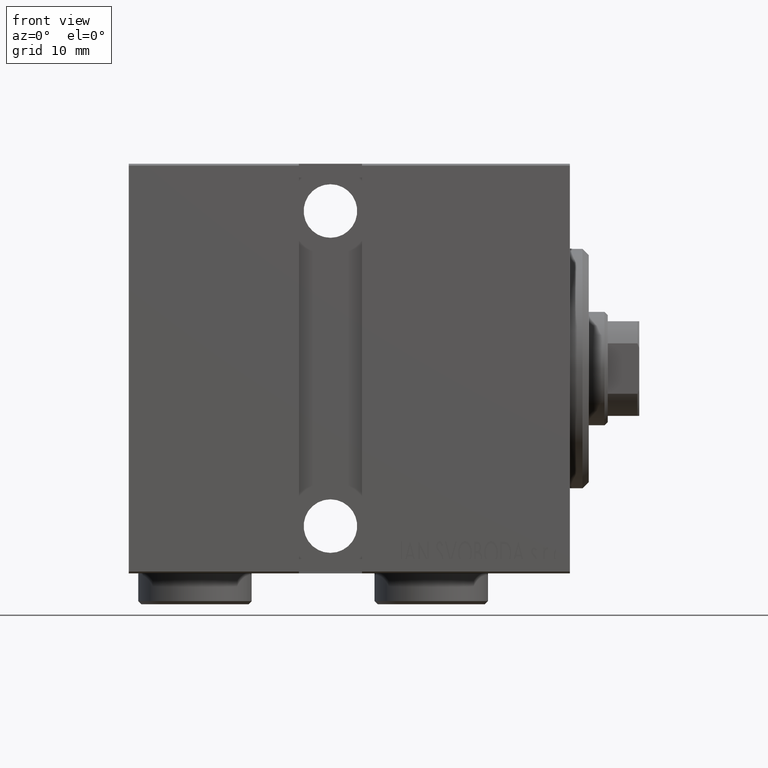
[diagram: clean part render]
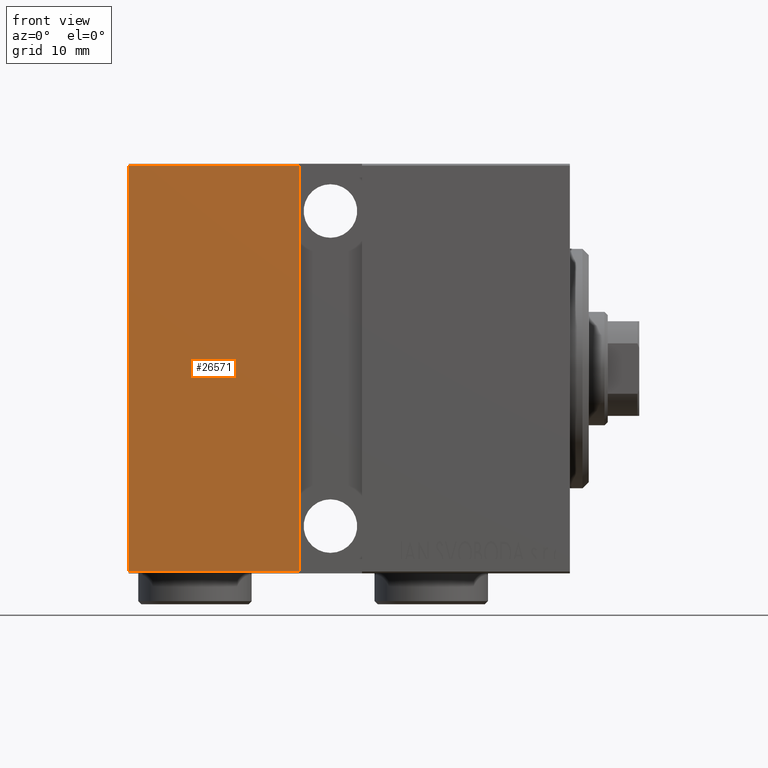
[diagram: same view with one face highlighted and labeled with its STEP entity id]
A machine part, front view. The second image highlights one B-rep face of the part: STEP entity #26571.
In plain terms, the highlighted planar face has unit normal (-0, 1, -0).
Its self-contained STEP definition (entity closure, byte-faithful):
#1645 = EDGE_CURVE ( 'NONE', #2854, #26504, #32120, .T. ) ;
#2854 = VERTEX_POINT ( 'NONE', #39647 ) ;
#3146 = VECTOR ( 'NONE', #38144, 1000.000000000000000 ) ;
#5353 = FACE_OUTER_BOUND ( 'NONE', #8824, .T. ) ;
#8410 = CARTESIAN_POINT ( 'NONE',  ( 70.00000000000000000, 22.50000000000000355, -32.19999999999999574 ) ) ;
#8824 = EDGE_LOOP ( 'NONE', ( #31518, #26163, #15474, #18552 ) ) ;
#11131 = VECTOR ( 'NONE', #12249, 1000.000000000000000 ) ;
#11390 = LINE ( 'NONE', #42839, #11131 ) ;
#11974 = DIRECTION ( 'NONE',  ( -1.000000000000000000, 0.000000000000000000, 0.000000000000000000 ) ) ;
#12249 = DIRECTION ( 'NONE',  ( 0.000000000000000000, -1.067522139062650425E-16, 1.000000000000000000 ) ) ;
#12584 = EDGE_CURVE ( 'NONE', #2854, #36003, #19220, .T. ) ;
#14286 = CARTESIAN_POINT ( 'NONE',  ( 70.00000000000000000, 22.49999999999999645, 32.20000000000000284 ) ) ;
#14713 = CARTESIAN_POINT ( 'NONE',  ( 70.00000000000000000, 22.49999999999999645, 32.20000000000000284 ) ) ;
#15474 = ORIENTED_EDGE ( 'NONE', *, *, #12584, .F. ) ;
#18552 = ORIENTED_EDGE ( 'NONE', *, *, #1645, .T. ) ;
#18604 = EDGE_CURVE ( 'NONE', #26881, #26504, #11390, .T. ) ;
#18953 = PLANE ( 'NONE',  #31963 ) ;
#19220 = LINE ( 'NONE', #40411, #19694 ) ;
#19694 = VECTOR ( 'NONE', #35373, 1000.000000000000000 ) ;
#21831 = CARTESIAN_POINT ( 'NONE',  ( 70.00000000000000000, 22.50000000000000355, -32.19999999999999574 ) ) ;
#22459 = LINE ( 'NONE', #8410, #40785 ) ;
#26163 = ORIENTED_EDGE ( 'NONE', *, *, #40229, .T. ) ;
#26504 = VERTEX_POINT ( 'NONE', #14286 ) ;
#26571 = ADVANCED_FACE ( 'NONE', ( #5353 ), #18953, .F. ) ;
#26881 = VERTEX_POINT ( 'NONE', #21831 ) ;
#28794 = CARTESIAN_POINT ( 'NONE',  ( 70.00000000000000000, 22.50000000000000355, -32.50000000000000000 ) ) ;
#31518 = ORIENTED_EDGE ( 'NONE', *, *, #18604, .F. ) ;
#31963 = AXIS2_PLACEMENT_3D ( 'NONE', #28794, #42411, #32805 ) ;
#32120 = LINE ( 'NONE', #14713, #3146 ) ;
#32805 = DIRECTION ( 'NONE',  ( 0.000000000000000000, 1.067522139062650425E-16, -1.000000000000000000 ) ) ;
#35373 = DIRECTION ( 'NONE',  ( -1.067522139062651164E-16, -0.000000000000000000, -1.000000000000000000 ) ) ;
#35618 = CARTESIAN_POINT ( 'NONE',  ( 43.00000000000000000, 22.50000000000000000, -32.19999999999999574 ) ) ;
#36003 = VERTEX_POINT ( 'NONE', #35618 ) ;
#38144 = DIRECTION ( 'NONE',  ( 1.000000000000000000, 0.000000000000000000, 0.000000000000000000 ) ) ;
#39647 = CARTESIAN_POINT ( 'NONE',  ( 43.00000000000000711, 22.50000000000000000, 32.20000000000000284 ) ) ;
#40229 = EDGE_CURVE ( 'NONE', #26881, #36003, #22459, .T. ) ;
#40411 = CARTESIAN_POINT ( 'NONE',  ( 43.00000000000000000, 22.50000000000000000, -32.50000000000000000 ) ) ;
#40785 = VECTOR ( 'NONE', #11974, 1000.000000000000000 ) ;
#42411 = DIRECTION ( 'NONE',  ( 0.000000000000000000, -1.000000000000000000, -1.067522139062650425E-16 ) ) ;
#42839 = CARTESIAN_POINT ( 'NONE',  ( 70.00000000000000000, 22.50000000000000355, -32.50000000000000000 ) ) ;